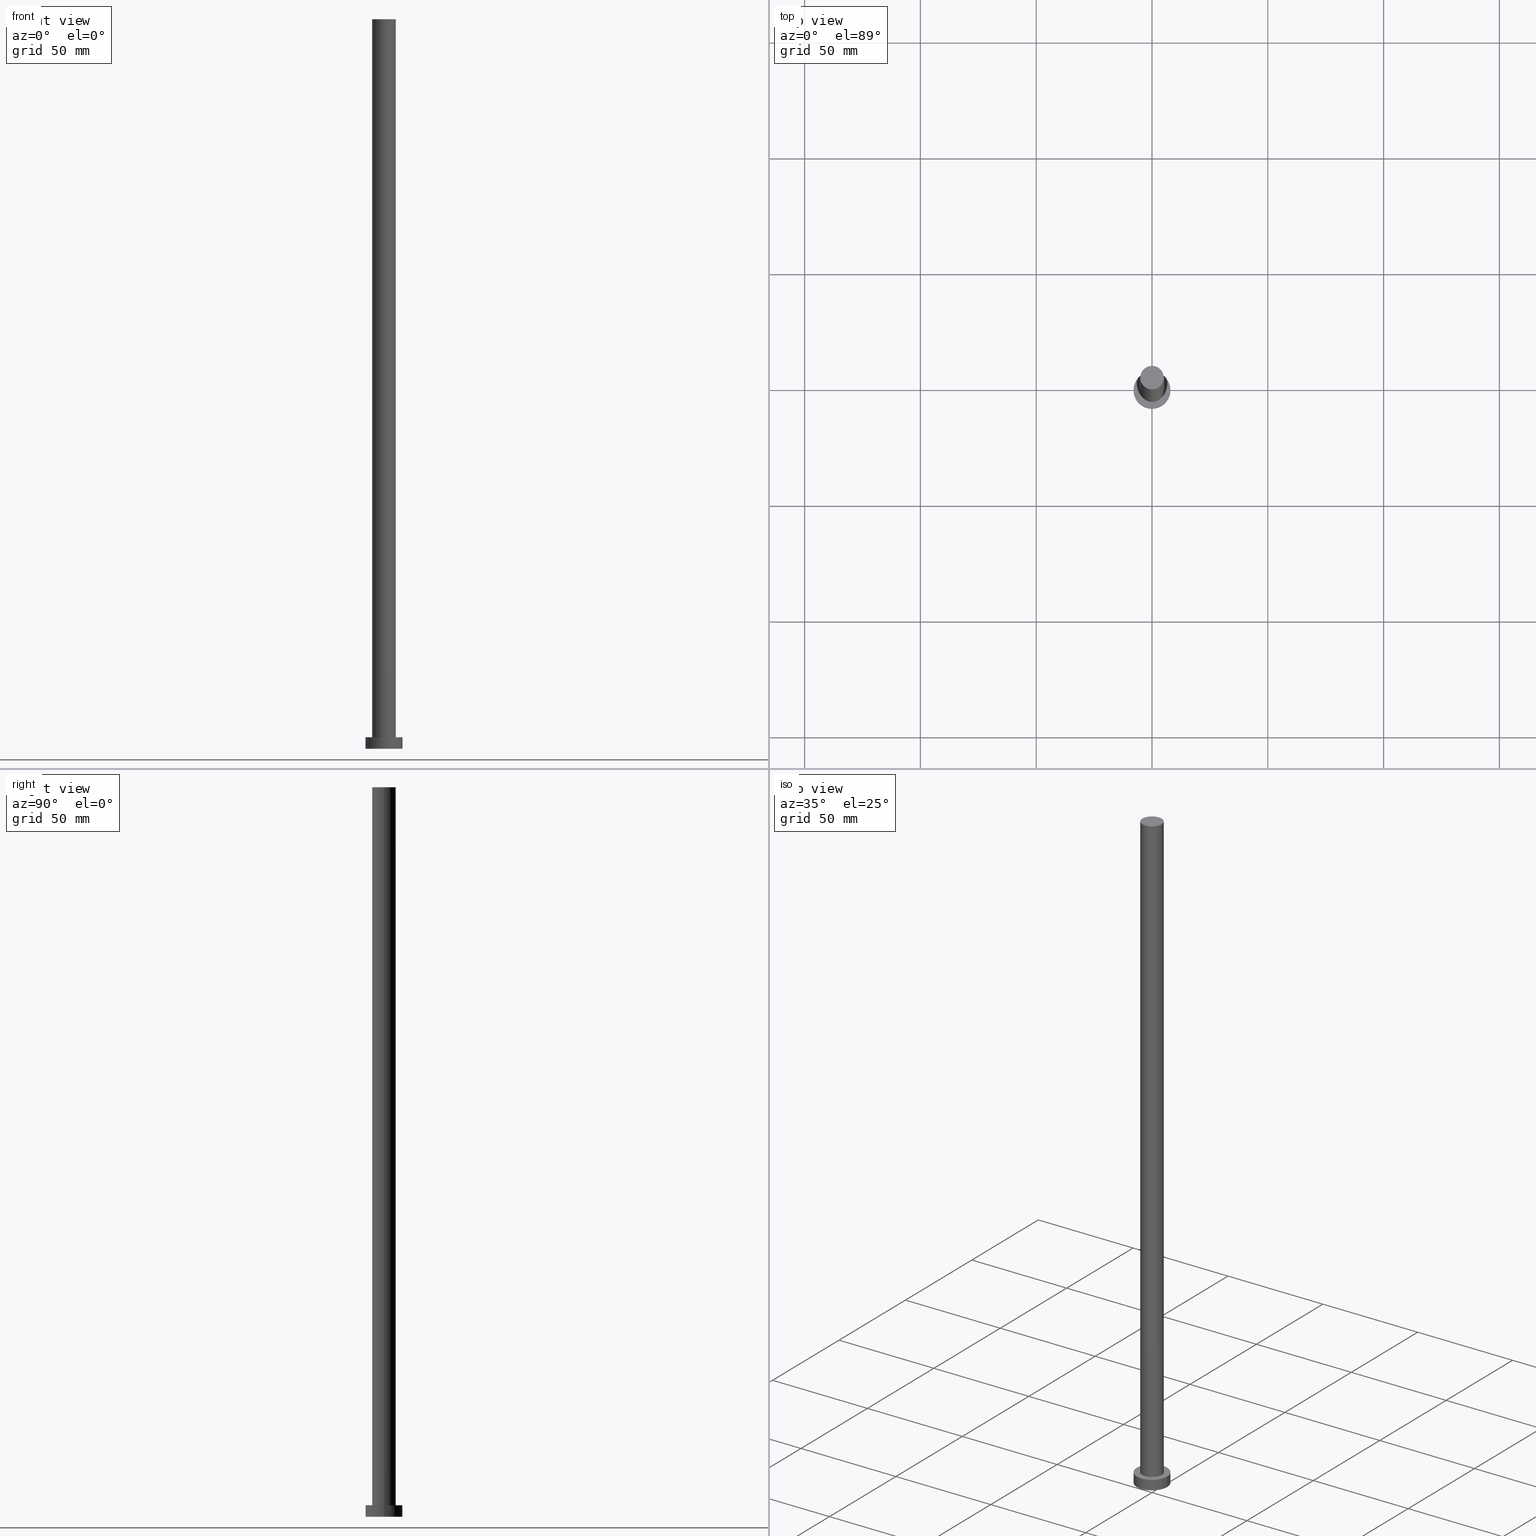
[diagram: canonical four-view strip — front | top / right | iso, engineering-drawing reading convention]
A machine part, canonical four-view strip (front | top / right | iso — engineering-drawing reading convention). The complete STEP part file that produces these views, byte-faithful:
ISO-10303-21;
HEADER;
FILE_DESCRIPTION (( 'STEP AP203' ),
    '1' );
FILE_NAME ('f4af.STEP',
    '2023-02-13T11:13:35',
    ( '' ),
    ( '' ),
    'SwSTEP 2.0',
    'SolidWorks 2019',
    '' );
FILE_SCHEMA (( 'CONFIG_CONTROL_DESIGN' ));
ENDSEC;

DATA;
#1 = DIRECTION ( 'NONE',  ( -1.000000000000000000, 0.000000000000000000, 0.000000000000000000 ) ) ;
#2 = DIRECTION ( 'NONE',  ( 0.000000000000000000, 0.000000000000000000, 1.000000000000000000 ) ) ;
#3 = LINE ( 'NONE', #246, #227 ) ;
#4 = CYLINDRICAL_SURFACE ( 'NONE', #183, 8.000000000000000000 ) ;
#5 = ADVANCED_FACE ( 'NONE', ( #140 ), #208, .T. ) ;
#6 =( NAMED_UNIT ( * ) PLANE_ANGLE_UNIT ( ) SI_UNIT ( $, .RADIAN. ) );
#7 = LINE ( 'NONE', #194, #36 ) ;
#8 = CC_DESIGN_DATE_AND_TIME_ASSIGNMENT ( #11, #218, ( #210 ) ) ;
#9 = AXIS2_PLACEMENT_3D ( 'NONE', #78, #39, #144 ) ;
#10 = EDGE_LOOP ( 'NONE', ( #131, #136, #201, #182 ) ) ;
#11 = DATE_AND_TIME ( #110, #125 ) ;
#12 = VERTEX_POINT ( 'NONE', #204 ) ;
#13 = CALENDAR_DATE ( 2023, 13, 2 ) ;
#14 = CIRCLE ( 'NONE', #172, 8.000000000000000000 ) ;
#15 = COORDINATED_UNIVERSAL_TIME_OFFSET ( 1, 0, .AHEAD. ) ;
#16 = ORIENTED_EDGE ( 'NONE', *, *, #156, .F. ) ;
#17 = DIRECTION ( 'NONE',  ( 1.000000000000000000, 0.000000000000000000, 0.000000000000000000 ) ) ;
#18 = DATE_TIME_ROLE ( 'classification_date' ) ;
#19 = DIRECTION ( 'NONE',  ( -0.000000000000000000, -0.000000000000000000, -1.000000000000000000 ) ) ;
#20 = CARTESIAN_POINT ( 'NONE',  ( 0.000000000000000000, 0.000000000000000000, 0.000000000000000000 ) ) ;
#21 = EDGE_CURVE ( 'NONE', #239, #238, #14, .T. ) ;
#22 = DIRECTION ( 'NONE',  ( 0.000000000000000000, 0.000000000000000000, 1.000000000000000000 ) ) ;
#23 = FACE_OUTER_BOUND ( 'NONE', #219, .T. ) ;
#24 = CARTESIAN_POINT ( 'NONE',  ( 0.000000000000000000, 0.000000000000000000, 5.000000000000000000 ) ) ;
#25 = DIRECTION ( 'NONE',  ( -1.000000000000000000, 0.000000000000000000, 0.000000000000000000 ) ) ;
#26 = APPROVAL_PERSON_ORGANIZATION ( #248, #127, #231 ) ;
#27 = CARTESIAN_POINT ( 'NONE',  ( 8.000000000000000000, 9.797174393178825657E-16, 0.000000000000000000 ) ) ;
#28 = ORIENTED_EDGE ( 'NONE', *, *, #175, .F. ) ;
#29 = DIRECTION ( 'NONE',  ( -0.000000000000000000, -0.000000000000000000, -1.000000000000000000 ) ) ;
#30 = VERTEX_POINT ( 'NONE', #145 ) ;
#31 = DATE_AND_TIME ( #13, #87 ) ;
#32 = CIRCLE ( 'NONE', #100, 8.000000000000000000 ) ;
#33 = SECURITY_CLASSIFICATION_LEVEL ( 'unclassified' ) ;
#34 = CC_DESIGN_PERSON_AND_ORGANIZATION_ASSIGNMENT ( #46, #126, ( #52 ) ) ;
#35 = ORIENTED_EDGE ( 'NONE', *, *, #156, .T. ) ;
#36 = VECTOR ( 'NONE', #109, 1000.000000000000000 ) ;
#37 = APPROVAL_DATE_TIME ( #31, #233 ) ;
#38 = ORIENTED_EDGE ( 'NONE', *, *, #65, .T. ) ;
#39 = DIRECTION ( 'NONE',  ( 0.000000000000000000, 0.000000000000000000, 1.000000000000000000 ) ) ;
#40 = APPROVAL_STATUS ( 'not_yet_approved' ) ;
#41 = DIRECTION ( 'NONE',  ( 0.000000000000000000, 0.000000000000000000, 1.000000000000000000 ) ) ;
#42 = CIRCLE ( 'NONE', #54, 5.100000000000001421 ) ;
#43 = CARTESIAN_POINT ( 'NONE',  ( 0.000000000000000000, 0.000000000000000000, 315.0000000000000000 ) ) ;
#44 = CYLINDRICAL_SURFACE ( 'NONE', #157, 8.000000000000000000 ) ;
#45 = APPROVAL_STATUS ( 'not_yet_approved' ) ;
#46 = PERSON_AND_ORGANIZATION ( #165, #168 ) ;
#47 = EDGE_CURVE ( 'NONE', #238, #239, #32, .T. ) ;
#48 = CIRCLE ( 'NONE', #207, 5.100000000000001421 ) ;
#49 = CALENDAR_DATE ( 2023, 13, 2 ) ;
#50 = CARTESIAN_POINT ( 'NONE',  ( 0.000000000000000000, 0.000000000000000000, 0.000000000000000000 ) ) ;
#51 = VERTEX_POINT ( 'NONE', #163 ) ;
#52 = PRODUCT ( 'f4af', 'f4af', '', ( #130 ) ) ;
#53 = AXIS2_PLACEMENT_3D ( 'NONE', #226, #22, #247 ) ;
#54 = AXIS2_PLACEMENT_3D ( 'NONE', #249, #171, #173 ) ;
#55 = ORIENTED_EDGE ( 'NONE', *, *, #65, .F. ) ;
#56 = PERSON_AND_ORGANIZATION ( #165, #168 ) ;
#57 = CARTESIAN_POINT ( 'NONE',  ( 0.000000000000000000, 0.000000000000000000, 5.000000000000000000 ) ) ;
#58 = DIRECTION ( 'NONE',  ( 0.000000000000000000, 0.000000000000000000, 1.000000000000000000 ) ) ;
#59 = FACE_OUTER_BOUND ( 'NONE', #93, .T. ) ;
#60 = CARTESIAN_POINT ( 'NONE',  ( 0.000000000000000000, 0.000000000000000000, 5.000000000000000000 ) ) ;
#61 = CARTESIAN_POINT ( 'NONE',  ( 0.000000000000000000, 0.000000000000000000, 315.0000000000000000 ) ) ;
#62 = APPROVAL ( #212, 'NEUR�EN�' ) ;
#63 = CIRCLE ( 'NONE', #53, 8.000000000000000000 ) ;
#64 = DIRECTION ( 'NONE',  ( 1.000000000000000000, 0.000000000000000000, 0.000000000000000000 ) ) ;
#65 = EDGE_CURVE ( 'NONE', #12, #238, #244, .T. ) ;
#66 = APPLICATION_PROTOCOL_DEFINITION ( 'international standard', 'config_control_design', 1994, #187 ) ;
#67 = MANIFOLD_SOLID_BREP ( 'P�idat vysunut�m3', #106 ) ;
#68 = CC_DESIGN_DATE_AND_TIME_ASSIGNMENT ( #243, #18, ( #102 ) ) ;
#69 = DATE_AND_TIME ( #49, #190 ) ;
#70 = VERTEX_POINT ( 'NONE', #167 ) ;
#71 = PERSON_AND_ORGANIZATION ( #165, #168 ) ;
#72 = ORIENTED_EDGE ( 'NONE', *, *, #134, .T. ) ;
#73 = ADVANCED_BREP_SHAPE_REPRESENTATION ( 'f4af', ( #67, #113 ), #151 ) ;
#74 = EDGE_LOOP ( 'NONE', ( #177, #111 ) ) ;
#75 = APPROVAL_PERSON_ORGANIZATION ( #124, #62, #91 ) ;
#76 = VERTEX_POINT ( 'NONE', #119 ) ;
#77 = PERSON_AND_ORGANIZATION_ROLE ( 'creator' ) ;
#78 = CARTESIAN_POINT ( 'NONE',  ( 0.000000000000000000, 0.000000000000000000, 315.0000000000000000 ) ) ;
#79 = DIRECTION ( 'NONE',  ( 0.000000000000000000, 0.000000000000000000, 1.000000000000000000 ) ) ;
#80 = AXIS2_PLACEMENT_3D ( 'NONE', #99, #209, #214 ) ;
#81 = FACE_OUTER_BOUND ( 'NONE', #90, .T. ) ;
#82 = DIRECTION ( 'NONE',  ( 1.000000000000000000, 0.000000000000000000, 0.000000000000000000 ) ) ;
#83 = CARTESIAN_POINT ( 'NONE',  ( 5.100000000000001421, 6.245698675651502811E-16, 315.0000000000000000 ) ) ;
#84 =( NAMED_UNIT ( * ) SI_UNIT ( $, .STERADIAN. ) SOLID_ANGLE_UNIT ( ) );
#85 = PLANE ( 'NONE',  #132 ) ;
#86 = CARTESIAN_POINT ( 'NONE',  ( -8.000000000000000000, 0.000000000000000000, 0.000000000000000000 ) ) ;
#87 = LOCAL_TIME ( 12, 13, 35.00000000000000000, #96 ) ;
#88 = CC_DESIGN_PERSON_AND_ORGANIZATION_ASSIGNMENT ( #199, #143, ( #102 ) ) ;
#89 = CARTESIAN_POINT ( 'NONE',  ( 0.000000000000000000, 0.000000000000000000, 315.0000000000000000 ) ) ;
#90 = EDGE_LOOP ( 'NONE', ( #35, #220 ) ) ;
#91 = APPROVAL_ROLE ( '' ) ;
#92 = VERTEX_POINT ( 'NONE', #83 ) ;
#93 = EDGE_LOOP ( 'NONE', ( #55, #16, #72, #198 ) ) ;
#94 = ADVANCED_FACE ( 'NONE', ( #59 ), #4, .T. ) ;
#95 = VECTOR ( 'NONE', #189, 1000.000000000000000 ) ;
#96 = COORDINATED_UNIVERSAL_TIME_OFFSET ( 1, 0, .AHEAD. ) ;
#97 = CARTESIAN_POINT ( 'NONE',  ( -8.000000000000000000, 0.000000000000000000, 5.000000000000000000 ) ) ;
#98 = FACE_BOUND ( 'NONE', #74, .T. ) ;
#99 = CARTESIAN_POINT ( 'NONE',  ( 0.000000000000000000, 0.000000000000000000, 315.0000000000000000 ) ) ;
#100 = AXIS2_PLACEMENT_3D ( 'NONE', #142, #79, #186 ) ;
#101 = ORIENTED_EDGE ( 'NONE', *, *, #134, .F. ) ;
#102 = SECURITY_CLASSIFICATION ( '', '', #33 ) ;
#103 = FACE_OUTER_BOUND ( 'NONE', #10, .T. ) ;
#104 = FACE_OUTER_BOUND ( 'NONE', #236, .T. ) ;
#105 = EDGE_CURVE ( 'NONE', #12, #76, #63, .T. ) ;
#106 = CLOSED_SHELL ( 'NONE', ( #229, #138, #94, #112, #225, #5, #150 ) ) ;
#107 = CC_DESIGN_APPROVAL ( #62, ( #192 ) ) ;
#108 = CC_DESIGN_PERSON_AND_ORGANIZATION_ASSIGNMENT ( #71, #153, ( #210 ) ) ;
#109 = DIRECTION ( 'NONE',  ( -0.000000000000000000, -0.000000000000000000, -1.000000000000000000 ) ) ;
#110 = CALENDAR_DATE ( 2023, 13, 2 ) ;
#111 = ORIENTED_EDGE ( 'NONE', *, *, #213, .F. ) ;
#112 = ADVANCED_FACE ( 'NONE', ( #98, #81 ), #188, .T. ) ;
#113 = AXIS2_PLACEMENT_3D ( 'NONE', #50, #234, #197 ) ;
#114 = ORIENTED_EDGE ( 'NONE', *, *, #179, .F. ) ;
#115 = DESIGN_CONTEXT ( 'detailed design', #187, 'design' ) ;
#116 = SHAPE_DEFINITION_REPRESENTATION ( #122, #73 ) ;
#117 = DIRECTION ( 'NONE',  ( -1.000000000000000000, 0.000000000000000000, 0.000000000000000000 ) ) ;
#118 = CC_DESIGN_PERSON_AND_ORGANIZATION_ASSIGNMENT ( #56, #202, ( #192 ) ) ;
#119 = CARTESIAN_POINT ( 'NONE',  ( -8.000000000000000000, 0.000000000000000000, 5.000000000000000000 ) ) ;
#120 = DIRECTION ( 'NONE',  ( 0.000000000000000000, 0.000000000000000000, 1.000000000000000000 ) ) ;
#121 = DIRECTION ( 'NONE',  ( -1.000000000000000000, 0.000000000000000000, 0.000000000000000000 ) ) ;
#122 = PRODUCT_DEFINITION_SHAPE ( 'NONE', 'NONE',  #210 ) ;
#123 = ORIENTED_EDGE ( 'NONE', *, *, #105, .F. ) ;
#124 = PERSON_AND_ORGANIZATION ( #165, #168 ) ;
#125 = LOCAL_TIME ( 12, 13, 35.00000000000000000, #216 ) ;
#126 = PERSON_AND_ORGANIZATION_ROLE ( 'design_owner' ) ;
#127 = APPROVAL ( #45, 'NEUR�EN�' ) ;
#128 = EDGE_CURVE ( 'NONE', #92, #70, #251, .T. ) ;
#129 = APPROVAL_DATE_TIME ( #69, #127 ) ;
#130 = MECHANICAL_CONTEXT ( 'NONE', #193, 'mechanical' ) ;
#131 = ORIENTED_EDGE ( 'NONE', *, *, #128, .F. ) ;
#132 = AXIS2_PLACEMENT_3D ( 'NONE', #152, #191, #155 ) ;
#133 = EDGE_LOOP ( 'NONE', ( #123, #38, #215, #101 ) ) ;
#134 = EDGE_CURVE ( 'NONE', #76, #239, #161, .T. ) ;
#135 = ORIENTED_EDGE ( 'NONE', *, *, #254, .T. ) ;
#136 = ORIENTED_EDGE ( 'NONE', *, *, #175, .T. ) ;
#137 = DATE_AND_TIME ( #141, #146 ) ;
#138 = ADVANCED_FACE ( 'NONE', ( #147 ), #44, .T. ) ;
#139 = APPROVAL_PERSON_ORGANIZATION ( #159, #233, #180 ) ;
#140 = FACE_OUTER_BOUND ( 'NONE', #245, .T. ) ;
#141 = CALENDAR_DATE ( 2023, 13, 2 ) ;
#142 = CARTESIAN_POINT ( 'NONE',  ( 0.000000000000000000, 0.000000000000000000, 0.000000000000000000 ) ) ;
#143 = PERSON_AND_ORGANIZATION_ROLE ( 'classification_officer' ) ;
#144 = DIRECTION ( 'NONE',  ( 1.000000000000000000, 0.000000000000000000, -0.000000000000000000 ) ) ;
#145 = CARTESIAN_POINT ( 'NONE',  ( 5.100000000000001421, 6.245698675651502811E-16, 5.000000000000000000 ) ) ;
#146 = LOCAL_TIME ( 12, 13, 35.00000000000000000, #15 ) ;
#147 = FACE_OUTER_BOUND ( 'NONE', #133, .T. ) ;
#148 = CC_DESIGN_APPROVAL ( #233, ( #102 ) ) ;
#149 = AXIS2_PLACEMENT_3D ( 'NONE', #43, #223, #1 ) ;
#150 = ADVANCED_FACE ( 'NONE', ( #23 ), #224, .T. ) ;
#151 =( GEOMETRIC_REPRESENTATION_CONTEXT ( 3 ) GLOBAL_UNCERTAINTY_ASSIGNED_CONTEXT ( ( #178 ) ) GLOBAL_UNIT_ASSIGNED_CONTEXT ( ( #235, #6, #84 ) ) REPRESENTATION_CONTEXT ( 'NONE', 'WORKASPACE' ) );
#152 = CARTESIAN_POINT ( 'NONE',  ( 0.000000000000000000, 0.000000000000000000, 0.000000000000000000 ) ) ;
#153 = PERSON_AND_ORGANIZATION_ROLE ( 'creator' ) ;
#154 = ORIENTED_EDGE ( 'NONE', *, *, #47, .F. ) ;
#155 = DIRECTION ( 'NONE',  ( 1.000000000000000000, 0.000000000000000000, -0.000000000000000000 ) ) ;
#156 = EDGE_CURVE ( 'NONE', #76, #12, #206, .T. ) ;
#157 = AXIS2_PLACEMENT_3D ( 'NONE', #211, #185, #121 ) ;
#158 = ORIENTED_EDGE ( 'NONE', *, *, #128, .T. ) ;
#159 = PERSON_AND_ORGANIZATION ( #165, #168 ) ;
#160 = APPROVAL_DATE_TIME ( #137, #62 ) ;
#161 = LINE ( 'NONE', #97, #95 ) ;
#162 = COORDINATED_UNIVERSAL_TIME_OFFSET ( 1, 0, .AHEAD. ) ;
#163 = CARTESIAN_POINT ( 'NONE',  ( -5.100000000000001421, 0.000000000000000000, 5.000000000000000000 ) ) ;
#164 = DIRECTION ( 'NONE',  ( 1.000000000000000000, 0.000000000000000000, -0.000000000000000000 ) ) ;
#165 = PERSON ( 'NEUR�EN�', 'NEUR�EN�', 'NEUR�EN�', ('NEUR�EN�'), ('NEUR�EN�'), ('NEUR�EN�') ) ;
#166 = CARTESIAN_POINT ( 'NONE',  ( 0.000000000000000000, 0.000000000000000000, 5.000000000000000000 ) ) ;
#167 = CARTESIAN_POINT ( 'NONE',  ( -5.100000000000001421, 0.000000000000000000, 315.0000000000000000 ) ) ;
#168 = ORGANIZATION ( 'NEUR�EN�', 'NEUR�EN�', '' ) ;
#169 = APPLICATION_PROTOCOL_DEFINITION ( 'international standard', 'config_control_design', 1994, #193 ) ;
#170 = CC_DESIGN_PERSON_AND_ORGANIZATION_ASSIGNMENT ( #181, #77, ( #192 ) ) ;
#171 = DIRECTION ( 'NONE',  ( 0.000000000000000000, 0.000000000000000000, 1.000000000000000000 ) ) ;
#172 = AXIS2_PLACEMENT_3D ( 'NONE', #20, #2, #82 ) ;
#173 = DIRECTION ( 'NONE',  ( 1.000000000000000000, 0.000000000000000000, 0.000000000000000000 ) ) ;
#174 = CC_DESIGN_SECURITY_CLASSIFICATION ( #102, ( #192 ) ) ;
#175 = EDGE_CURVE ( 'NONE', #92, #30, #3, .T. ) ;
#176 = DIRECTION ( 'NONE',  ( 0.000000000000000000, 0.000000000000000000, 1.000000000000000000 ) ) ;
#177 = ORIENTED_EDGE ( 'NONE', *, *, #240, .F. ) ;
#178 = UNCERTAINTY_MEASURE_WITH_UNIT (LENGTH_MEASURE( 1.000000000000000082E-05 ), #235, 'distance_accuracy_value', 'NONE');
#179 = EDGE_CURVE ( 'NONE', #70, #92, #232, .T. ) ;
#180 = APPROVAL_ROLE ( '' ) ;
#181 = PERSON_AND_ORGANIZATION ( #165, #168 ) ;
#182 = ORIENTED_EDGE ( 'NONE', *, *, #254, .F. ) ;
#183 = AXIS2_PLACEMENT_3D ( 'NONE', #166, #19, #117 ) ;
#184 = CALENDAR_DATE ( 2023, 13, 2 ) ;
#185 = DIRECTION ( 'NONE',  ( -0.000000000000000000, -0.000000000000000000, -1.000000000000000000 ) ) ;
#186 = DIRECTION ( 'NONE',  ( 1.000000000000000000, 0.000000000000000000, 0.000000000000000000 ) ) ;
#187 = APPLICATION_CONTEXT ( 'configuration controlled 3d designs of mechanical parts and assemblies' ) ;
#188 = PLANE ( 'NONE',  #217 ) ;
#189 = DIRECTION ( 'NONE',  ( -0.000000000000000000, -0.000000000000000000, -1.000000000000000000 ) ) ;
#190 = LOCAL_TIME ( 12, 13, 35.00000000000000000, #253 ) ;
#191 = DIRECTION ( 'NONE',  ( 0.000000000000000000, 0.000000000000000000, 1.000000000000000000 ) ) ;
#192 = PRODUCT_DEFINITION_FORMATION_WITH_SPECIFIED_SOURCE ( 'LIBOVOLN�', '', #52, .NOT_KNOWN. ) ;
#193 = APPLICATION_CONTEXT ( 'configuration controlled 3d designs of mechanical parts and assemblies' ) ;
#194 = CARTESIAN_POINT ( 'NONE',  ( -5.100000000000001421, 0.000000000000000000, 315.0000000000000000 ) ) ;
#195 = VECTOR ( 'NONE', #242, 1000.000000000000000 ) ;
#196 = PRODUCT_RELATED_PRODUCT_CATEGORY ( 'detail', '', ( #52 ) ) ;
#197 = DIRECTION ( 'NONE',  ( 1.000000000000000000, 0.000000000000000000, 0.000000000000000000 ) ) ;
#198 = ORIENTED_EDGE ( 'NONE', *, *, #21, .T. ) ;
#199 = PERSON_AND_ORGANIZATION ( #165, #168 ) ;
#200 = AXIS2_PLACEMENT_3D ( 'NONE', #89, #29, #25 ) ;
#201 = ORIENTED_EDGE ( 'NONE', *, *, #213, .T. ) ;
#202 = PERSON_AND_ORGANIZATION_ROLE ( 'design_supplier' ) ;
#203 = DIRECTION ( 'NONE',  ( 1.000000000000000000, 0.000000000000000000, 0.000000000000000000 ) ) ;
#204 = CARTESIAN_POINT ( 'NONE',  ( 8.000000000000000000, 9.797174393178825657E-16, 5.000000000000000000 ) ) ;
#205 = AXIS2_PLACEMENT_3D ( 'NONE', #61, #58, #203 ) ;
#206 = CIRCLE ( 'NONE', #250, 8.000000000000000000 ) ;
#207 = AXIS2_PLACEMENT_3D ( 'NONE', #24, #176, #64 ) ;
#208 = CYLINDRICAL_SURFACE ( 'NONE', #149, 5.100000000000001421 ) ;
#209 = DIRECTION ( 'NONE',  ( 0.000000000000000000, 0.000000000000000000, 1.000000000000000000 ) ) ;
#210 = PRODUCT_DEFINITION ( 'NEZN�M�', '', #192, #115 ) ;
#211 = CARTESIAN_POINT ( 'NONE',  ( 0.000000000000000000, 0.000000000000000000, 5.000000000000000000 ) ) ;
#212 = APPROVAL_STATUS ( 'not_yet_approved' ) ;
#213 = EDGE_CURVE ( 'NONE', #30, #51, #48, .T. ) ;
#214 = DIRECTION ( 'NONE',  ( 1.000000000000000000, 0.000000000000000000, 0.000000000000000000 ) ) ;
#215 = ORIENTED_EDGE ( 'NONE', *, *, #47, .T. ) ;
#216 = COORDINATED_UNIVERSAL_TIME_OFFSET ( 1, 0, .AHEAD. ) ;
#217 = AXIS2_PLACEMENT_3D ( 'NONE', #57, #41, #164 ) ;
#218 = DATE_TIME_ROLE ( 'creation_date' ) ;
#219 = EDGE_LOOP ( 'NONE', ( #241, #158 ) ) ;
#220 = ORIENTED_EDGE ( 'NONE', *, *, #105, .T. ) ;
#221 = ORIENTED_EDGE ( 'NONE', *, *, #240, .T. ) ;
#222 = CC_DESIGN_APPROVAL ( #127, ( #210 ) ) ;
#223 = DIRECTION ( 'NONE',  ( -0.000000000000000000, -0.000000000000000000, -1.000000000000000000 ) ) ;
#224 = PLANE ( 'NONE',  #9 ) ;
#225 = ADVANCED_FACE ( 'NONE', ( #104 ), #85, .F. ) ;
#226 = CARTESIAN_POINT ( 'NONE',  ( 0.000000000000000000, 0.000000000000000000, 5.000000000000000000 ) ) ;
#227 = VECTOR ( 'NONE', #228, 1000.000000000000000 ) ;
#228 = DIRECTION ( 'NONE',  ( -0.000000000000000000, -0.000000000000000000, -1.000000000000000000 ) ) ;
#229 = ADVANCED_FACE ( 'NONE', ( #103 ), #237, .T. ) ;
#230 = CARTESIAN_POINT ( 'NONE',  ( 8.000000000000000000, 9.797174393178825657E-16, 5.000000000000000000 ) ) ;
#231 = APPROVAL_ROLE ( '' ) ;
#232 = CIRCLE ( 'NONE', #80, 5.100000000000001421 ) ;
#233 = APPROVAL ( #40, 'NEUR�EN�' ) ;
#234 = DIRECTION ( 'NONE',  ( 0.000000000000000000, 0.000000000000000000, 1.000000000000000000 ) ) ;
#235 =( LENGTH_UNIT ( ) NAMED_UNIT ( * ) SI_UNIT ( .MILLI., .METRE. ) );
#236 = EDGE_LOOP ( 'NONE', ( #255, #154 ) ) ;
#237 = CYLINDRICAL_SURFACE ( 'NONE', #200, 5.100000000000001421 ) ;
#238 = VERTEX_POINT ( 'NONE', #27 ) ;
#239 = VERTEX_POINT ( 'NONE', #86 ) ;
#240 = EDGE_CURVE ( 'NONE', #51, #30, #42, .T. ) ;
#241 = ORIENTED_EDGE ( 'NONE', *, *, #179, .T. ) ;
#242 = DIRECTION ( 'NONE',  ( -0.000000000000000000, -0.000000000000000000, -1.000000000000000000 ) ) ;
#243 = DATE_AND_TIME ( #184, #252 ) ;
#244 = LINE ( 'NONE', #230, #195 ) ;
#245 = EDGE_LOOP ( 'NONE', ( #28, #114, #135, #221 ) ) ;
#246 = CARTESIAN_POINT ( 'NONE',  ( 5.100000000000001421, 6.245698675651502811E-16, 315.0000000000000000 ) ) ;
#247 = DIRECTION ( 'NONE',  ( 1.000000000000000000, 0.000000000000000000, 0.000000000000000000 ) ) ;
#248 = PERSON_AND_ORGANIZATION ( #165, #168 ) ;
#249 = CARTESIAN_POINT ( 'NONE',  ( 0.000000000000000000, 0.000000000000000000, 5.000000000000000000 ) ) ;
#250 = AXIS2_PLACEMENT_3D ( 'NONE', #60, #120, #17 ) ;
#251 = CIRCLE ( 'NONE', #205, 5.100000000000001421 ) ;
#252 = LOCAL_TIME ( 12, 13, 35.00000000000000000, #162 ) ;
#253 = COORDINATED_UNIVERSAL_TIME_OFFSET ( 1, 0, .AHEAD. ) ;
#254 = EDGE_CURVE ( 'NONE', #70, #51, #7, .T. ) ;
#255 = ORIENTED_EDGE ( 'NONE', *, *, #21, .F. ) ;
ENDSEC;
END-ISO-10303-21;
